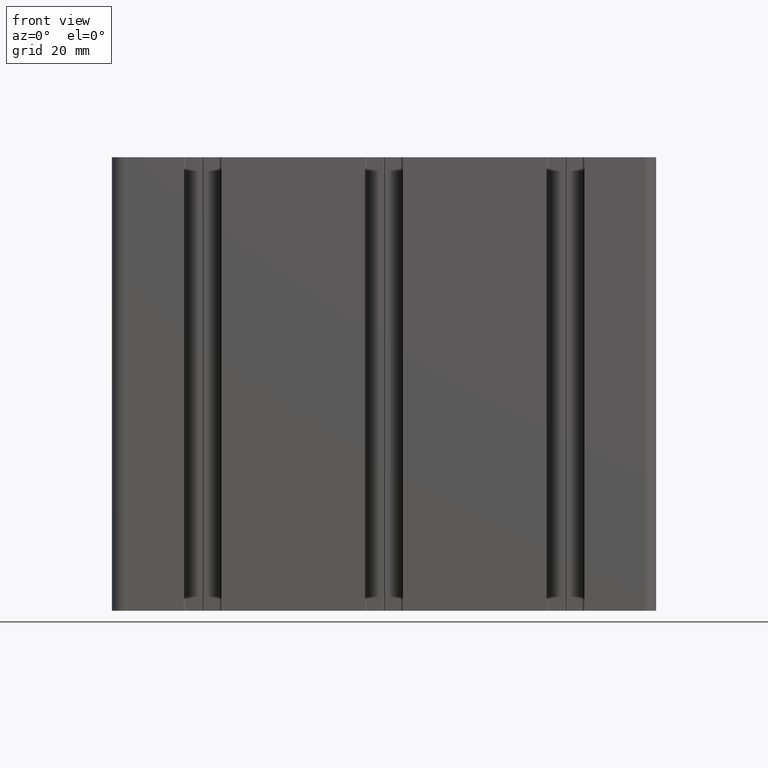
[diagram: clean part render]
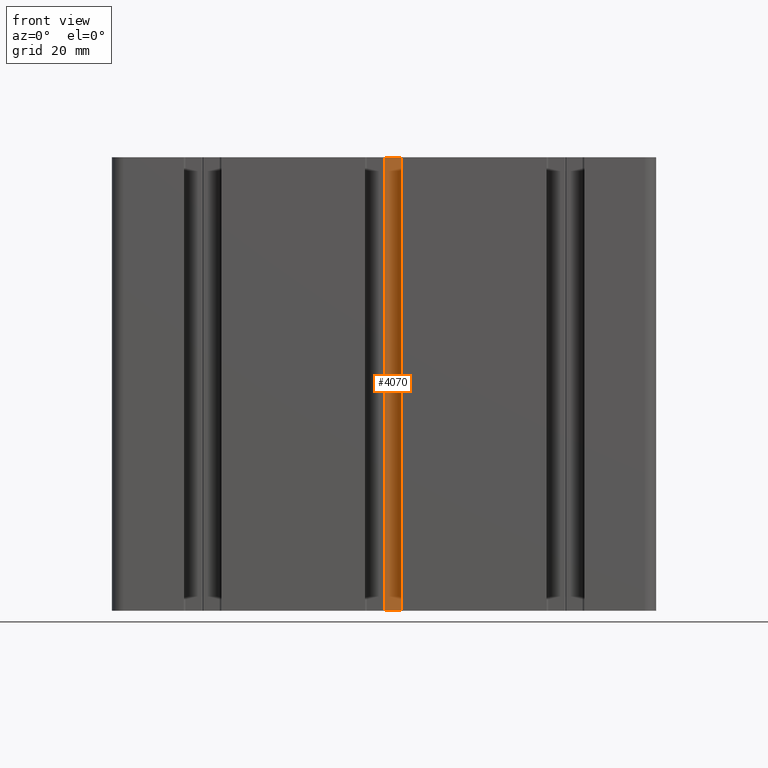
[diagram: same view with one face highlighted and labeled with its STEP entity id]
A machine part, front view. The second image highlights one B-rep face of the part: STEP entity #4070.
In plain terms, the highlighted planar face has unit normal (0, -1, 0).
Its self-contained STEP definition (entity closure, byte-faithful):
#98=PLANE('',#4377);
#278=FACE_OUTER_BOUND('',#486,.T.);
#486=EDGE_LOOP('',(#3113,#3114,#3115,#3116));
#830=LINE('',#6360,#1286);
#831=LINE('',#6363,#1287);
#832=LINE('',#6365,#1288);
#833=LINE('',#6366,#1289);
#1286=VECTOR('',#5179,100.);
#1287=VECTOR('',#5182,3.60062327991343);
#1288=VECTOR('',#5183,3.60062327991343);
#1289=VECTOR('',#5184,100.);
#1883=VERTEX_POINT('',#6356);
#1884=VERTEX_POINT('',#6358);
#1885=VERTEX_POINT('',#6362);
#1886=VERTEX_POINT('',#6364);
#2398=EDGE_CURVE('',#1883,#1884,#830,.T.);
#2399=EDGE_CURVE('',#1885,#1883,#831,.T.);
#2400=EDGE_CURVE('',#1886,#1884,#832,.T.);
#2401=EDGE_CURVE('',#1885,#1886,#833,.T.);
#3113=ORIENTED_EDGE('',*,*,#2399,.T.);
#3114=ORIENTED_EDGE('',*,*,#2398,.T.);
#3115=ORIENTED_EDGE('',*,*,#2400,.F.);
#3116=ORIENTED_EDGE('',*,*,#2401,.F.);
#4070=ADVANCED_FACE('',(#278),#98,.T.);
#4377=AXIS2_PLACEMENT_3D('',#6361,#5180,#5181);
#5179=DIRECTION('',(0.,0.,1.));
#5180=DIRECTION('center_axis',(0.,-1.,0.));
#5181=DIRECTION('ref_axis',(1.,0.,0.));
#5182=DIRECTION('',(1.,0.,0.));
#5183=DIRECTION('',(1.,0.,0.));
#5184=DIRECTION('',(0.,0.,1.));
#6356=CARTESIAN_POINT('',(3.80062327991342,-5.5,0.));
#6358=CARTESIAN_POINT('',(3.80062327991342,-5.5,100.));
#6360=CARTESIAN_POINT('',(3.80062327991342,-5.5,0.));
#6361=CARTESIAN_POINT('Origin',(0.199999999999996,-5.5,0.));
#6362=CARTESIAN_POINT('',(0.199999999999996,-5.5,0.));
#6363=CARTESIAN_POINT('',(0.199999999999996,-5.5,0.));
#6364=CARTESIAN_POINT('',(0.199999999999996,-5.5,100.));
#6365=CARTESIAN_POINT('',(0.199999999999996,-5.5,100.));
#6366=CARTESIAN_POINT('',(0.199999999999996,-5.5,0.));